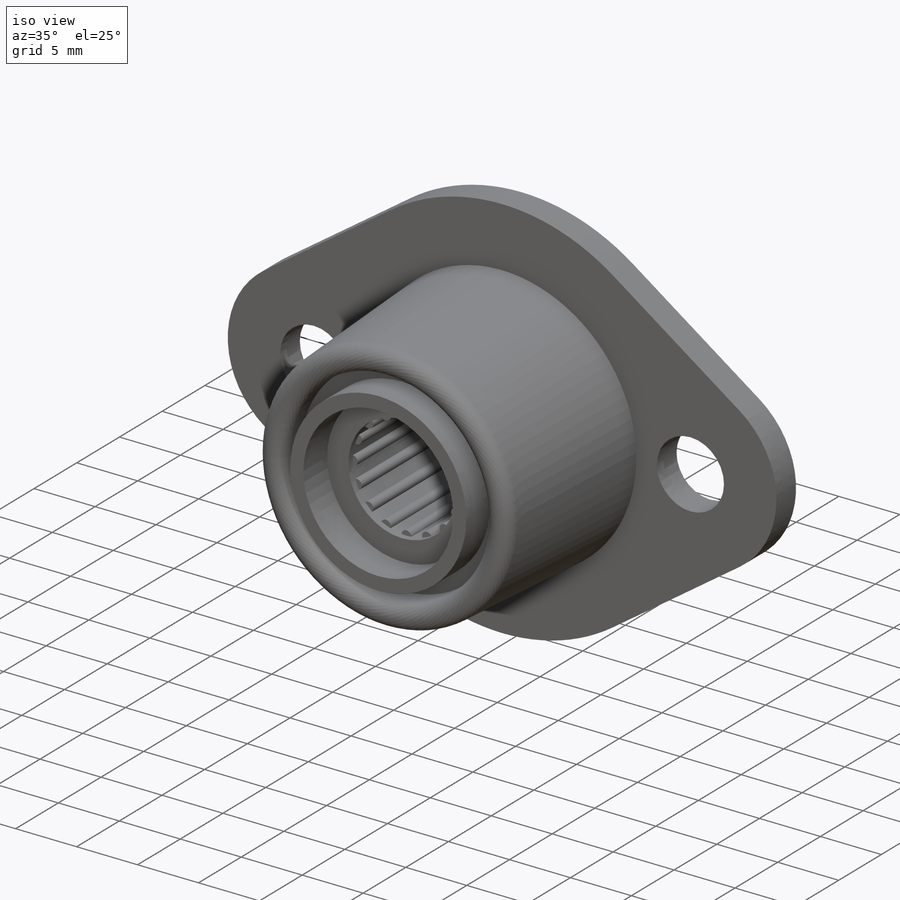
[diagram: iso view]
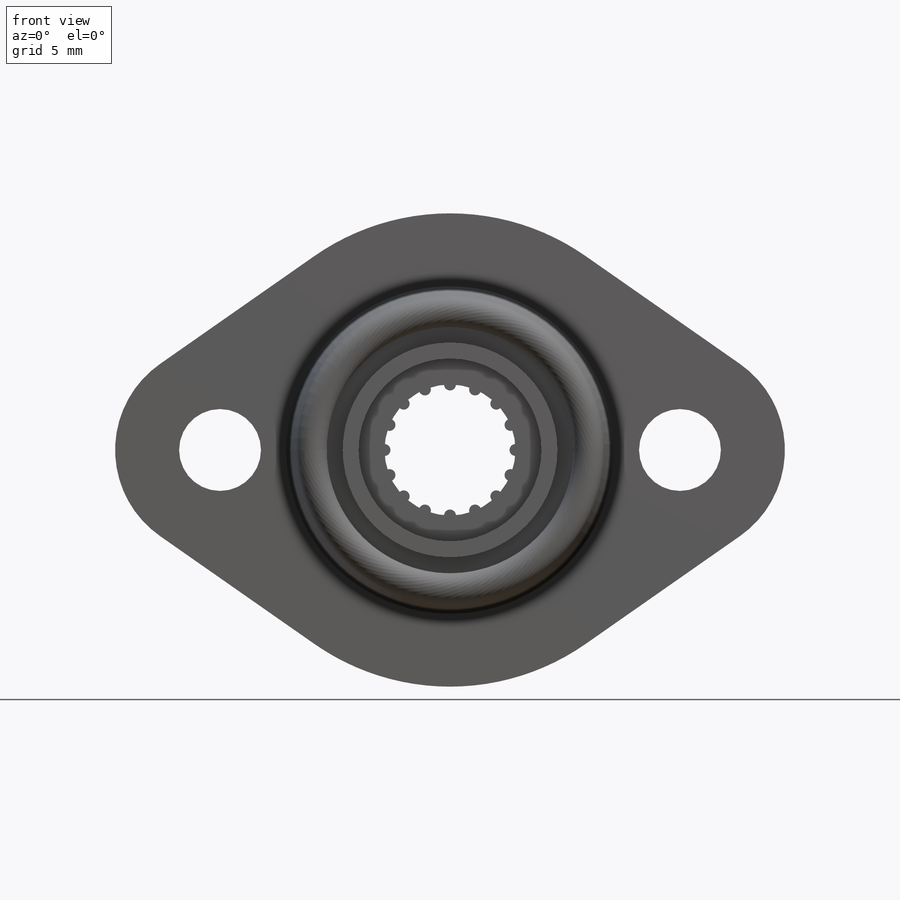
[diagram: front view]
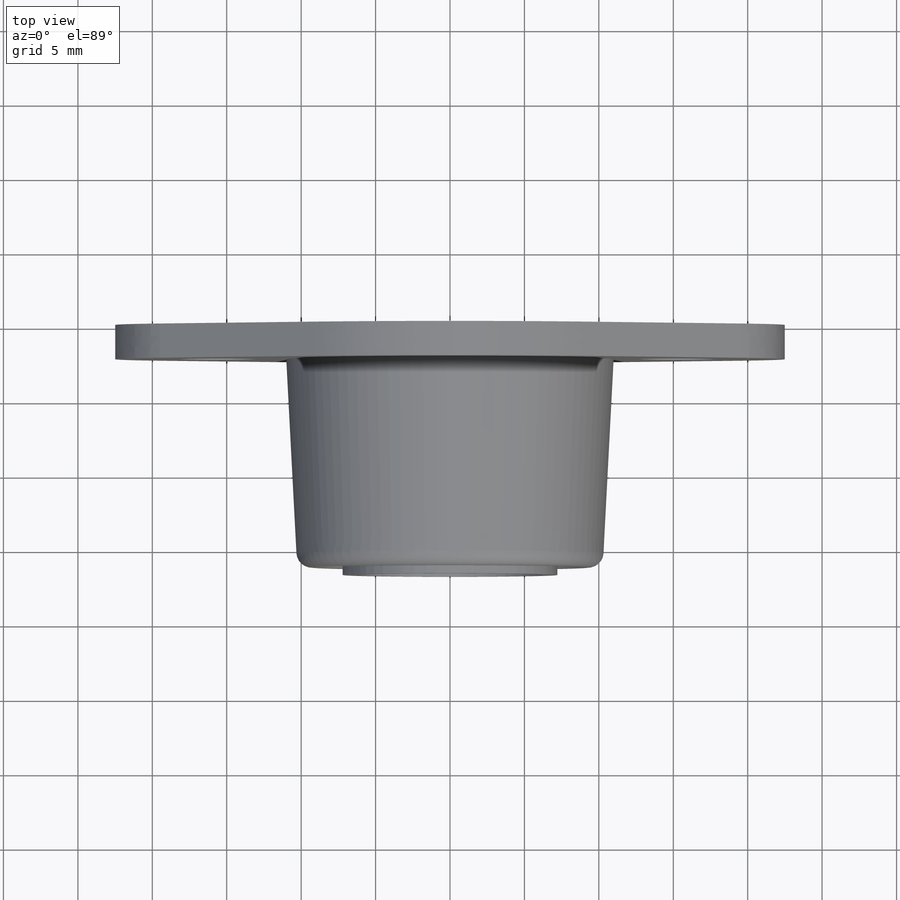
[diagram: top view]
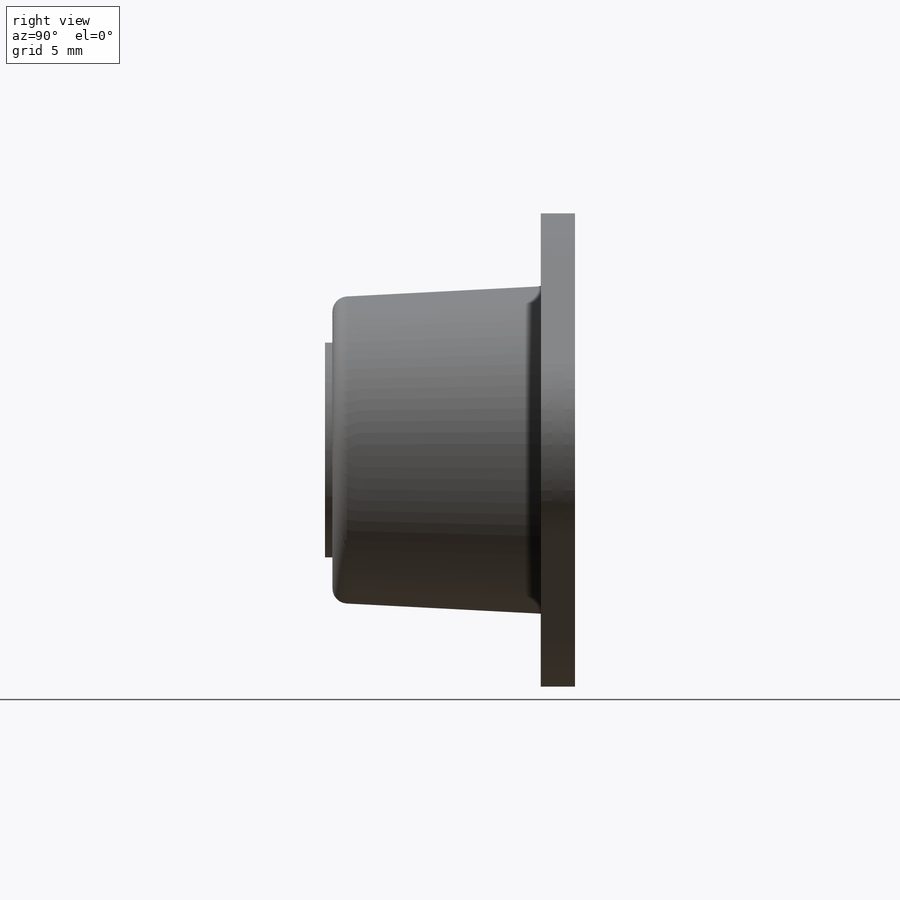
[diagram: right view]
SOLIDWORKS PART (.sldprt)
format: sldprt  version: not decoded by parser v0  size: 480,256 bytes
history: native  units: mm
features: sketch x5, cut_extrude x3, material x1, extrude x1, revolve x1 (+12 scaffold rows collapsed)
feature tree (23):
  scaffold x12  (default folders/planes/origin — collapsed)
  material  "Material <not specified>"
  sketch  "Sketch1"  dims[H=5.5mm D2=~27.11492mm D3=~5.55625mm C=31.8mm A=22.0mm B=45.0mm D=30.9mm]
  extrude  "Extrude1"  Depth=2.3mm E=2.3mm
  sketch  "Sketch2"  dims[c1.F=16.3mm c1.D2=~17.918589mm c2.D2=~179.00309deg c2.Shaft Dia=8.0mm c2.D3=2.032mm c2.D4=1.27mm c2.D5=16.3043mm c3.D5=3.0deg c3.G=16.8mm c3.D1=16.3mm]
  revolve  "Revolve1"  Angle=360deg
  sketch  "Sketch3"  dims[D1=8.8mm]
  cut_extrude  "Cut-Extrude2"  [1 undecoded]
  sketch  "Sketch4"
  cut_extrude  "Cut-Extrude3"  Depth=0.508mm
  sketch  "Sketch5"
  cut_extrude  "Cut-Extrude4"  Depth=0.508mm
decode coverage: 7 of 10 modeling features carry decoded parameters
note: ~ marks probable driven/reference dimensions
note: 1 parameter value undecoded
note: suppression state not decoded; provenance and decode notes live in map.json
